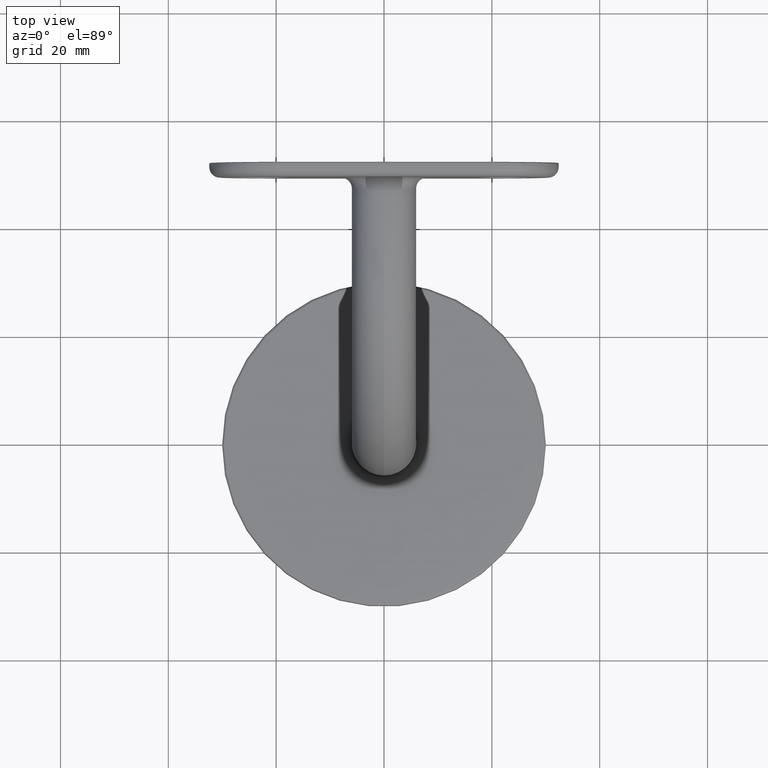
[diagram: clean part render]
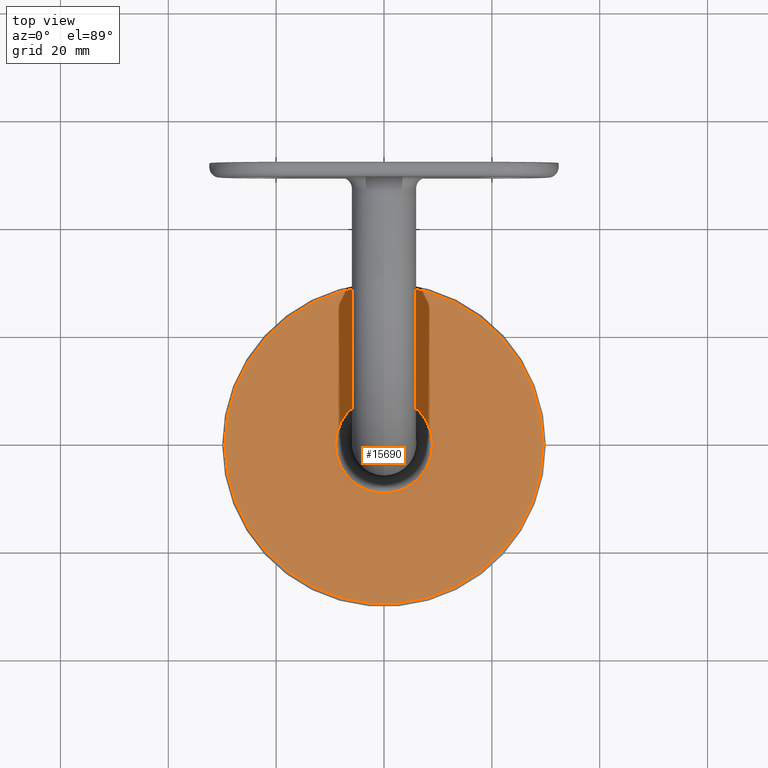
[diagram: same view with one face highlighted and labeled with its STEP entity id]
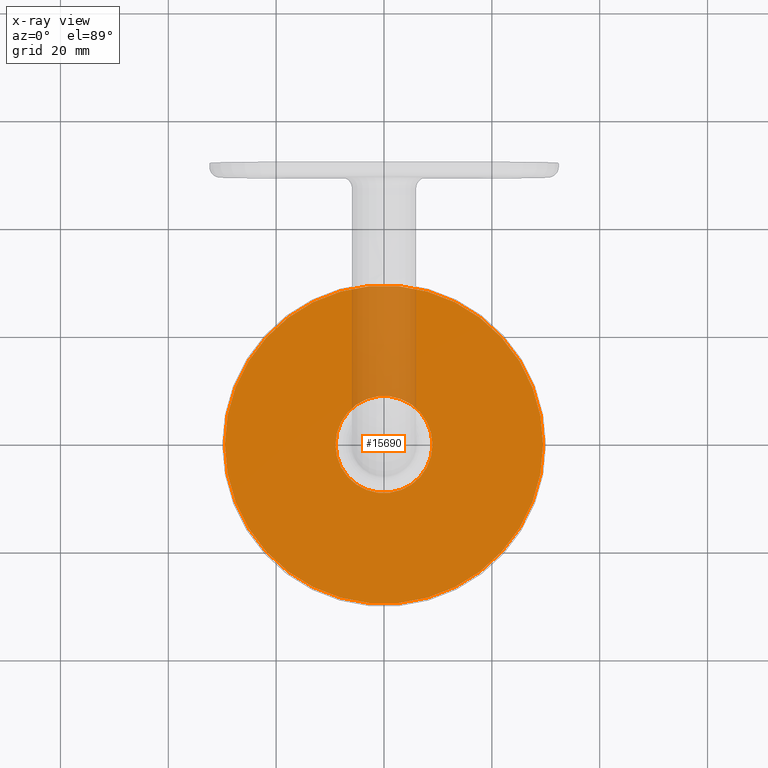
[diagram: x-ray of the same camera — body ghosted, the highlighted face saturated]
A machine part, top view. The second image highlights one B-rep face of the part: STEP entity #15690.
The next image is the same camera in x-ray: the body ghosted, the highlighted face saturated — about 10% of this face is hidden behind the body in this view.
In plain terms, the highlighted planar face has unit normal (0, 0, 1).
Its self-contained STEP definition (entity closure, byte-faithful):
#99 = AXIS2_PLACEMENT_3D ( 'NONE', #3045, #11668, #4060 ) ;
#105 = ORIENTED_EDGE ( 'NONE', *, *, #921, .T. ) ;
#921 = EDGE_CURVE ( 'NONE', #13322, #4139, #10967, .T. ) ;
#1483 = CIRCLE ( 'NONE', #5165, 29.50000000000000000 ) ;
#1640 = CARTESIAN_POINT ( 'NONE',  ( -9.000000000000001776, -7.481895884759636354E-16, 5.000000000000000000 ) ) ;
#2599 = AXIS2_PLACEMENT_3D ( 'NONE', #12799, #11382, #10199 ) ;
#2795 = EDGE_CURVE ( 'NONE', #10180, #6569, #12804, .T. ) ;
#3045 = CARTESIAN_POINT ( 'NONE',  ( 0.000000000000000000, 0.000000000000000000, 5.000000000000000000 ) ) ;
#3672 = FACE_BOUND ( 'NONE', #8229, .T. ) ;
#3834 = AXIS2_PLACEMENT_3D ( 'NONE', #8387, #4795, #9571 ) ;
#3870 = EDGE_LOOP ( 'NONE', ( #8113, #14362 ) ) ;
#4060 = DIRECTION ( 'NONE',  ( 1.000000000000000000, 0.000000000000000000, 0.000000000000000000 ) ) ;
#4139 = VERTEX_POINT ( 'NONE', #6726 ) ;
#4795 = DIRECTION ( 'NONE',  ( -0.000000000000000000, -0.000000000000000000, -1.000000000000000000 ) ) ;
#4988 = FACE_OUTER_BOUND ( 'NONE', #3870, .T. ) ;
#5165 = AXIS2_PLACEMENT_3D ( 'NONE', #13036, #6927, #6881 ) ;
#6569 = VERTEX_POINT ( 'NONE', #12916 ) ;
#6726 = CARTESIAN_POINT ( 'NONE',  ( 9.000000000000001776, -1.850371707708581349E-15, 5.000000000000000000 ) ) ;
#6881 = DIRECTION ( 'NONE',  ( 1.000000000000000000, 0.000000000000000000, 0.000000000000000000 ) ) ;
#6927 = DIRECTION ( 'NONE',  ( 0.000000000000000000, 0.000000000000000000, 1.000000000000000000 ) ) ;
#7023 = DIRECTION ( 'NONE',  ( 1.000000000000000000, 0.000000000000000000, 0.000000000000000000 ) ) ;
#7723 = PLANE ( 'NONE',  #2599 ) ;
#8113 = ORIENTED_EDGE ( 'NONE', *, *, #2795, .T. ) ;
#8229 = EDGE_LOOP ( 'NONE', ( #12619, #105 ) ) ;
#8387 = CARTESIAN_POINT ( 'NONE',  ( 0.000000000000000000, -1.850371707708581349E-15, 5.000000000000000000 ) ) ;
#9571 = DIRECTION ( 'NONE',  ( 1.000000000000000000, 0.000000000000000000, 0.000000000000000000 ) ) ;
#10180 = VERTEX_POINT ( 'NONE', #15697 ) ;
#10199 = DIRECTION ( 'NONE',  ( 1.000000000000000000, 0.000000000000000000, -0.000000000000000000 ) ) ;
#10967 = CIRCLE ( 'NONE', #3834, 9.000000000000001776 ) ;
#11382 = DIRECTION ( 'NONE',  ( 0.000000000000000000, 0.000000000000000000, 1.000000000000000000 ) ) ;
#11668 = DIRECTION ( 'NONE',  ( 0.000000000000000000, 0.000000000000000000, 1.000000000000000000 ) ) ;
#12103 = EDGE_CURVE ( 'NONE', #4139, #13322, #13609, .T. ) ;
#12619 = ORIENTED_EDGE ( 'NONE', *, *, #12103, .T. ) ;
#12799 = CARTESIAN_POINT ( 'NONE',  ( 0.000000000000000000, 0.000000000000000000, 5.000000000000000000 ) ) ;
#12804 = CIRCLE ( 'NONE', #99, 29.50000000000000000 ) ;
#12916 = CARTESIAN_POINT ( 'NONE',  ( -29.50000000000000000, 3.643324227463375391E-15, 5.000000000000000000 ) ) ;
#13036 = CARTESIAN_POINT ( 'NONE',  ( 0.000000000000000000, 0.000000000000000000, 5.000000000000000000 ) ) ;
#13248 = AXIS2_PLACEMENT_3D ( 'NONE', #13289, #15563, #7023 ) ;
#13289 = CARTESIAN_POINT ( 'NONE',  ( 0.000000000000000000, -1.850371707708581349E-15, 5.000000000000000000 ) ) ;
#13322 = VERTEX_POINT ( 'NONE', #1640 ) ;
#13609 = CIRCLE ( 'NONE', #13248, 9.000000000000001776 ) ;
#13745 = EDGE_CURVE ( 'NONE', #6569, #10180, #1483, .T. ) ;
#14362 = ORIENTED_EDGE ( 'NONE', *, *, #13745, .T. ) ;
#15563 = DIRECTION ( 'NONE',  ( -0.000000000000000000, -0.000000000000000000, -1.000000000000000000 ) ) ;
#15690 = ADVANCED_FACE ( 'NONE', ( #4988, #3672 ), #7723, .T. ) ;
#15697 = CARTESIAN_POINT ( 'NONE',  ( 29.50000000000000000, 0.000000000000000000, 5.000000000000000000 ) ) ;